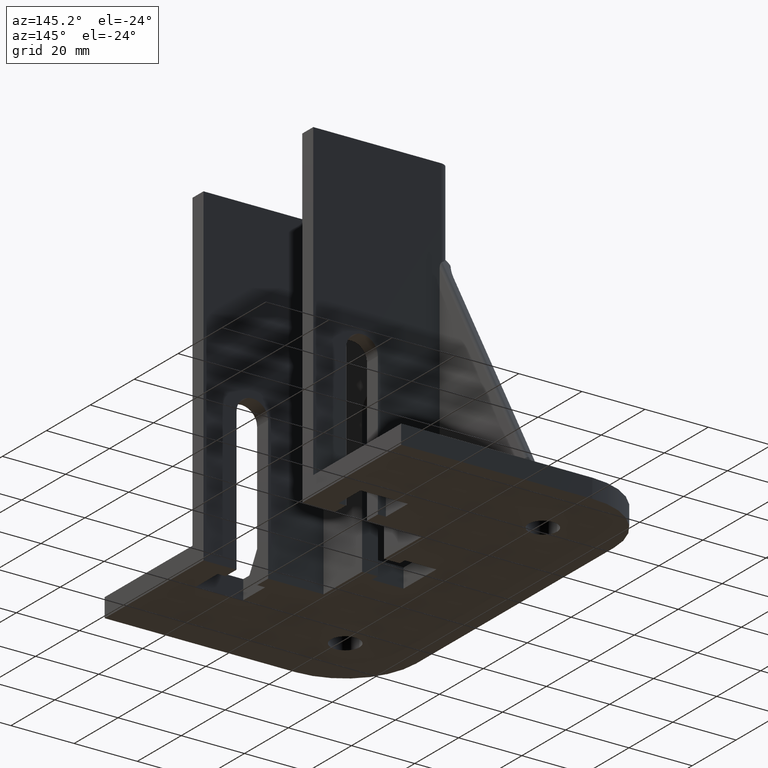
[diagram: clean part render]
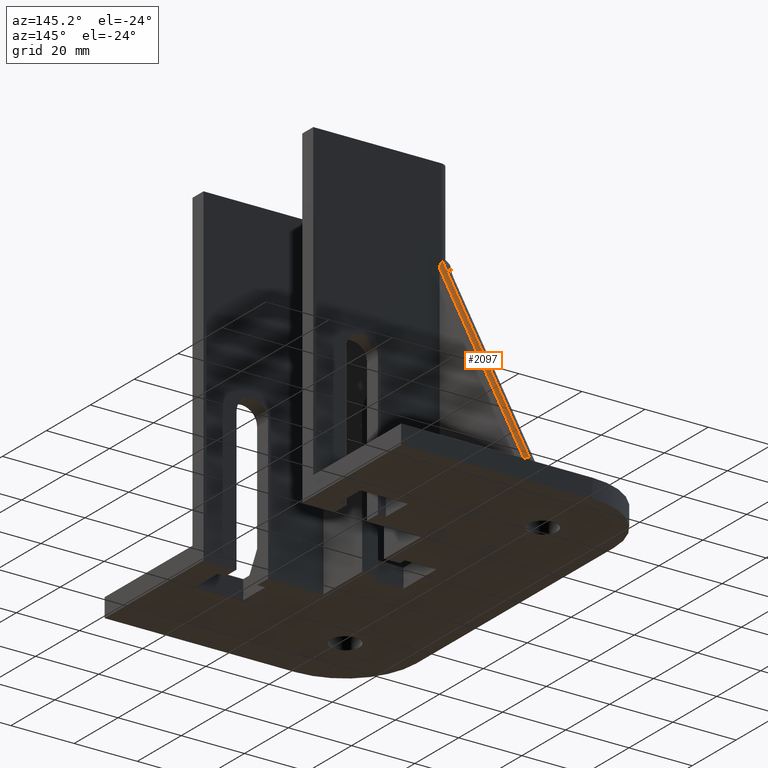
[diagram: same view with one face highlighted and labeled with its STEP entity id]
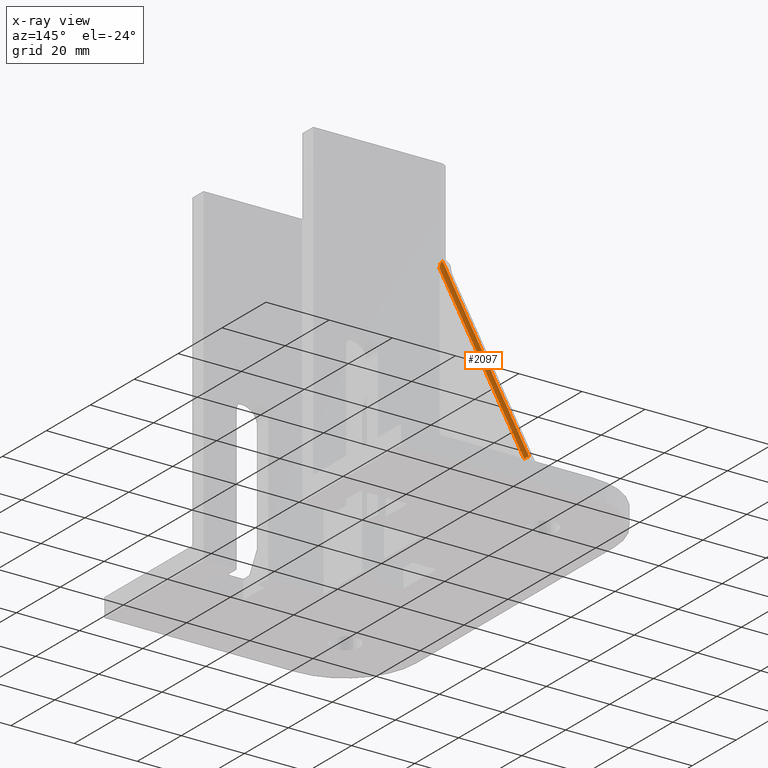
[diagram: x-ray of the same camera — body ghosted, the highlighted face saturated]
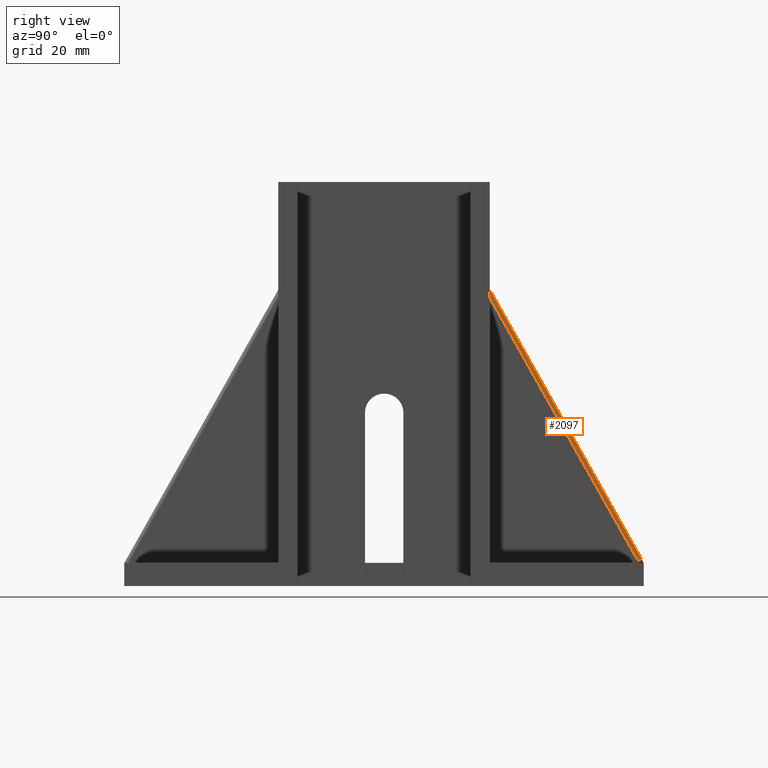
[diagram: same view with one face highlighted and labeled with its STEP entity id]
A machine part, auxiliary view. The second image highlights one B-rep face of the part: STEP entity #2097.
The next image is the same camera in x-ray: the body ghosted, the highlighted face saturated — about 0% of this face is hidden behind the body in this view.
A second angle (right view) of the same face is appended — the face is thin or edge-on in the first view.
In plain terms, the highlighted cylindrical surface (edge-blend (fillet) strip) has radius 1 mm, axis along (0, -0.4908, 0.8712).
Its self-contained STEP definition (entity closure, byte-faithful):
#80=B_SPLINE_CURVE_WITH_KNOTS('',3,(#4711,#4712,#4713,#4714,#4715,#4716),
 .UNSPECIFIED.,.F.,.F.,(4,2,4),(-0.792738219269582,-0.766954450147007,-0.733677197118571),
 .UNSPECIFIED.);
#153=ELLIPSE('',#2199,2.03730826881761,1.);
#265=FACE_OUTER_BOUND('',#375,.T.);
#375=EDGE_LOOP('',(#1692,#1693,#1694,#1695,#1696));
#559=LINE('',#4719,#726);
#560=LINE('',#4722,#727);
#726=VECTOR('',#2603,78.4362114764278);
#727=VECTOR('',#2606,80.3141189313031);
#794=CIRCLE('',#2255,1.);
#848=VERTEX_POINT('',#2845);
#849=VERTEX_POINT('',#2847);
#945=VERTEX_POINT('',#4698);
#949=VERTEX_POINT('',#4718);
#950=VERTEX_POINT('',#4720);
#1074=EDGE_CURVE('',#848,#849,#153,.T.);
#1222=EDGE_CURVE('',#849,#945,#80,.T.);
#1223=EDGE_CURVE('',#848,#949,#559,.T.);
#1224=EDGE_CURVE('',#950,#949,#794,.T.);
#1225=EDGE_CURVE('',#945,#950,#560,.T.);
#1692=ORIENTED_EDGE('',*,*,#1223,.T.);
#1693=ORIENTED_EDGE('',*,*,#1224,.F.);
#1694=ORIENTED_EDGE('',*,*,#1225,.F.);
#1695=ORIENTED_EDGE('',*,*,#1222,.F.);
#1696=ORIENTED_EDGE('',*,*,#1074,.F.);
#2026=CYLINDRICAL_SURFACE('',#2254,1.);
#2097=ADVANCED_FACE('',(#265),#2026,.T.);
#2199=AXIS2_PLACEMENT_3D('',#2848,#2397,#2398);
#2254=AXIS2_PLACEMENT_3D('',#4717,#2601,#2602);
#2255=AXIS2_PLACEMENT_3D('',#4721,#2604,#2605);
#2397=DIRECTION('center_axis',(0.,-1.,0.));
#2398=DIRECTION('ref_axis',(0.,0.,-1.));
#2601=DIRECTION('center_axis',(0.,-0.490843734993708,0.871247627151677));
#2602=DIRECTION('ref_axis',(1.,0.,0.));
#2603=DIRECTION('',(0.,0.490843734993708,-0.871247627151677));
#2604=DIRECTION('center_axis',(0.,0.490843734993708,-0.871247627151677));
#2605=DIRECTION('ref_axis',(1.,0.,0.));
#2606=DIRECTION('',(0.,0.490843734993708,-0.871247627151677));
#2845=CARTESIAN_POINT('',(-24.4999509999021,-39.9999199998401,74.962537730875));
#2847=CARTESIAN_POINT('',(-24.9999449998899,-39.9999199998401,76.7268913894974));
#2848=CARTESIAN_POINT('Origin',(-25.4999509999021,-39.9999199998401,74.962537730875));
#4698=CARTESIAN_POINT('',(-25.4999509999021,-40.050431481812,77.0895038799392));
#4711=CARTESIAN_POINT('Ctrl Pts',(-24.9999449998899,-39.9999199998401,76.7268913894974));
#4712=CARTESIAN_POINT('Ctrl Pts',(-25.0607204648907,-39.9999199998401,76.7983790952599));
#4713=CARTESIAN_POINT('Ctrl Pts',(-25.128939711926,-40.0023365619533,76.8642008645777));
#4714=CARTESIAN_POINT('Ctrl Pts',(-25.2831880314248,-40.0144877417389,76.985928555487));
#4715=CARTESIAN_POINT('Ctrl Pts',(-25.3975304710401,-40.0295247175718,77.0523943735178));
#4716=CARTESIAN_POINT('Ctrl Pts',(-25.4999509999021,-40.050431481812,77.0895038799392));
#4717=CARTESIAN_POINT('Origin',(-25.4999509999021,-42.2357351792626,78.9311096631347));
#4718=CARTESIAN_POINT('',(-24.4999509999021,-1.49999699999398,6.62517459927014));
#4719=CARTESIAN_POINT('',(-24.4999509999021,-39.9999199998401,74.962537730875));
#4720=CARTESIAN_POINT('',(-25.4999509999021,-0.628749372842321,7.11601833426386));
#4721=CARTESIAN_POINT('Origin',(-25.4999509999021,-1.49999699999398,6.62517459927012));
#4722=CARTESIAN_POINT('',(-25.4999509999021,-40.050431481812,77.0895038799392));